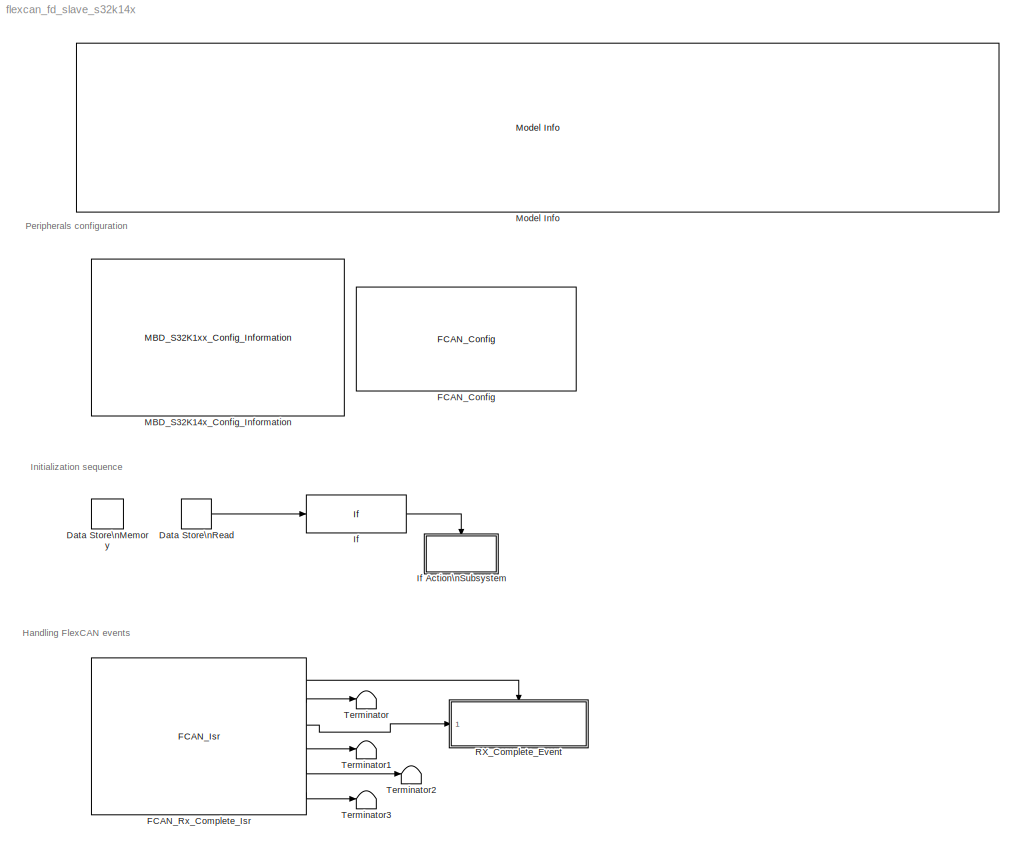
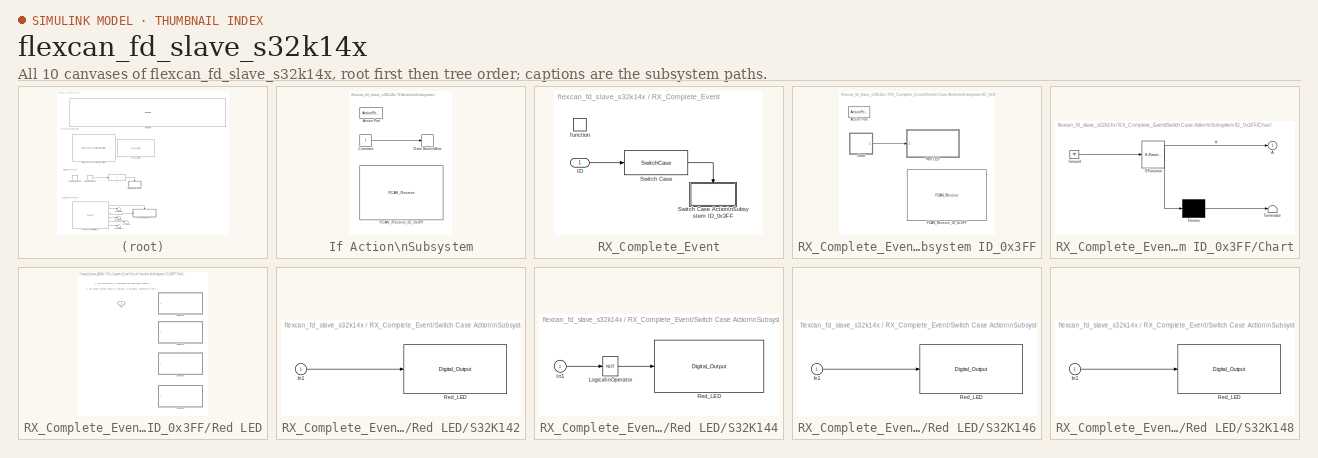
[diagram: thumbnail index - all 10 canvases of the model, root first then tree order]
MODEL flexcan_fd_slave_s32k14x
KIND model
CONFIG InitFcn = mbd_s32k_consistency_checks(bdroot(gcs));
CONFIG PreLoadFcn = mbd_s32k_examples_preload_cbk;
BLOCK [DataStoreMemory] Data Store\nMemory
  DataStoreName = Once
  OutDataTypeStr = uint32
  ReadBeforeWriteMsg = warning
  SID = 138
  ShowAdditionalParam = off
  WriteAfterReadMsg = warning
  WriteAfterWriteMsg = warning
BLOCK [DataStoreRead] Data Store\nRead
  DataStoreName = Once
  Ports = [0, 1]
  SID = 139
BLOCK [Reference] FCAN_Config  REF=mbd_s32k1xx_ec_toolbox/Communication Blocks/CAN Blocks/FCAN_Config
  Ports = []
  Priority = 1
  SID = 2
  SourceBlock = mbd_s32k1xx_ec_toolbox/Communication Blocks/CAN Blocks/FCAN_Config
  SourceType = fcan_s32k_config
  bitrate = 500
  bitrate_adv_opts = off
  can_cbt_presdiv = 3
  can_cbt_propseg = 27
  can_cbt_pseg1 = 5
  can_cbt_pseg2 = 5
  can_cbt_rjw = 3
  can_clk_src = Peripheral clock
  can_fd_enable = on
  can_fifo_id_filter = {'0x0', '0x0', '0x0', '0x0', '0x0', '0x0', '0x0', '0x0'}
  can_fifo_id_filter_extended = off
  can_fifo_id_filter_remote = off
  can_fifo_id_format = A
  can_idfilter_extendedid = off
  can_idfilter_id1 = 0
  can_idfilter_id2 = 0
  can_idfilter_remoteframe = off
  can_idfilter_type = Match exact
  can_instance = 0
  can_match_timeout = 1
  can_max_num_mb = 16
  can_mode = Normal mode
  can_multiple_matches_en = off
  can_num_id_filters = 8
  can_num_matches = 1
  can_payload = 8
  can_payloadfilter_dlchigh = 0
  can_payloadfilter_dlclow = 0
  can_payloadfilter_enable = off
  can_payloadfilter_payload1_b0 = 0
  can_payloadfilter_payload1_b1 = 0
  can_payloadfilter_payload1_b2 = 0
  can_payloadfilter_payload1_b3 = 0
  can_payloadfilter_payload1_b4 = 0
  can_payloadfilter_payload1_b5 = 0
  can_payloadfilter_payload1_b6 = 0
  can_payloadfilter_payload1_b7 = 0
  can_payloadfilter_payload2_b0 = 0
  can_payloadfilter_payload2_b1 = 0
  can_payloadfilter_payload2_b2 = 0
  can_payloadfilter_payload2_b3 = 0
  can_payloadfilter_payload2_b4 = 0
  can_payloadfilter_payload2_b5 = 0
  can_payloadfilter_payload2_b6 = 0
  can_payloadfilter_payload2_b7 = 0
  can_payloadfilter_type = Match exact
  can_pn_enable = off
  can_presdiv = 7
  can_propseg = 7
  can_pseg1 = 6
  can_pseg2 = 3
  can_rjw = 3
  can_rx = PTE4: [CAN0_RX | CAN Rx channel]
  can_rxfifo_enable = off
  can_timeout_en = off
  can_tx = PTE5: [CAN0_TX | CAN Tx Channel]
  can_wakeup_match = off
  can_wakeup_timeout = off
  show_adv_opts = on
BLOCK [Reference] FCAN_Rx_Complete_Isr  REF=mbd_s32k1xx_ec_toolbox/Communication Blocks/CAN Blocks/FCAN_Isr
  Ports = [0, 6]
  SID = 86
  SourceBlock = mbd_s32k1xx_ec_toolbox/Communication Blocks/CAN Blocks/FCAN_Isr
  SourceType = fcan_s32k_isr
  can_event = Rx Complete
  can_instance = 0
BLOCK [If] If
  IfExpression = u1 == 0
  Ports = [1, 1]
  SID = 144
  ShowElse = off
BLOCK [SubSystem] If Action\nSubsystem
  Ports = [0, 0, 0, 0, 0, 0, 0, 1]
  RequestExecContextInheritance = off
  SID = 145
  TreatAsAtomicUnit = on
  Variant = off
BLOCK [ActionPort] If Action\nSubsystem/Action Port
  SID = 147
BLOCK [Constant] If Action\nSubsystem/Constant
  OutDataTypeStr = uint32
  SID = 142
BLOCK [DataStoreWrite] If Action\nSubsystem/Data Store\nWrite
  DataStoreName = Once
  Ports = [1]
  SID = 141
BLOCK [Reference] If Action\nSubsystem/FCAN_Receive_ID_0x3FF  REF=mbd_s32k1xx_ec_toolbox/Communication Blocks/CAN Blocks/FCAN_Receive
  Ports = []
  SID = 194
  SourceBlock = mbd_s32k1xx_ec_toolbox/Communication Blocks/CAN Blocks/FCAN_Receive
  SourceType = fcan_s32k_receive
  can_extended_id = off
  can_fd_enable = on
  can_id = 3FF
  can_instance = 0
  can_is_remote = off
  can_mb_idx = 14
  can_mode = Non-blocking
  can_msg_mask = FFFFFFFF
  can_timeout_ms = 0
  can_use_rxfifo = off
  show_adv_opts = on
BLOCK [Reference] MBD_S32K14x_Config_Information  REF=mbd_s32k1xx_ec_toolbox/MBD_S32K1xx_Config_Information
  ADC_PcrCheckEnDis = on
  AMMCLIB_PcrCheckEnDis = on
  CMP_PcrCheckEnDis = on
  CSEc_PcrCheckEnDis = on
  ConfigParams_PcrCheckEnDis = on
  FM_PcrCheckEnDis = on
  FTM_Dual_Edge_Inputs_PcrCheckEnDis = on
  FTM_Hall_Sensor_Inputs_PcrCheckEnDis = on
  FTM_Input_Edge_Inputs_PcrCheckEnDis = on
  FTM_PWM_PcrCheckEnDis = on
  FTM_Quadrature_Inputs_PcrCheckEnDis = on
  FlexCAN_PcrCheckEnDis = on
  FlexIO_PcrCheckEnDis = on
  GPIO_InputPcrCheckEnDis = on
  GPIO_OutputPcrCheckEnDis = on
  LIN_PcrCheckEnDis = on
  LPI2C_PcrCheckEnDis = on
  LPSPI_PcrCheckEnDis = on
  LPTMR_PcrCheckEnDis = on
  LPUART_PcrCheckEnDis = on
  ModelRef_PcrCheckEnDis = on
  PDB0_PcrCheckEnDis = on
  PIT_PcrCheckEnDis = on
  Ports = []
  Profile_PcrCheckEnDis = on
  RTC_PcrCheckEnDis = on
  SBC_PcrCheckEnDis = on
  SID = 227
  SourceBlock = mbd_s32k1xx_ec_toolbox/MBD_S32K1xx_Config_Information
  SourceType = MBDTBX_EC_S32K
  WDOG_PcrCheckEnDis = on
  config_params = []
  disp_str = Target : S32K144-64KB_SRAM\nPackage : 100-pin\nSystem clock : 80 MHz\nXTAL clock : External 8 MHz\nCompiler : IAR\nTarget Type : FLASH\nDownload Code after build : off\nStep Tick Interrupt Priority : 15
  ds_import_enable = on
  eDMA_PcrCheckEnDis = on
  gcc_target_assemble_opts = -mcpu=cortex-m4 -mthumb -mfloat-abi=hard -mfpu=fpv4-sp-d16 -g
  gcc_target_compile_opts = -mcpu=cortex-m4 -mthumb -mfloat-abi=hard -mfpu=fpv4-sp-d16 -O1 -g -gstrict-dwarf
  gcc_target_default_lcf = on
  gcc_target_link_opts = -mcpu=cortex-m4 -mthumb -mfloat-abi=hard -mfpu=fpv4-sp-d16
  gcc_target_user_lcf = S32K144_64_flash.ld
  ghs_target_assemble_opts = -cpu=cortexm4f -fpu=vfpv4_d16
  ghs_target_compile_opts = -cpu=cortexm4f -thumb -DARM_MATH_CM4 -fpu=vfpv4_d16 -fsingle -Ogeneral -Wundef -Wimplicit-int -Wshadow -Wtrigraphs --no_commons --gnu_asm -gnu99 -gdwarf-2 -G
  ghs_target_default_lcf = on
  ghs_target_link_opts = -cpu=cortexm4f -thumb -fpu=vfpv4_d16
  ghs_target_user_lcf = S32K144_64_flash.ld
  iar_target_assemble_opts = --cpu Cortex-M4F --thumb --fpu VFPv4_sp
  iar_target_compile_opts = --cpu=Cortex-M4F --thumb --fpu=VFPv4_sp -Ol -e --debug --dlib_config normal
  iar_target_default_lcf = on
  iar_target_link_opts = --no_exceptions --vfe --inline
  iar_target_user_lcf = S32K144_64_flash.icf
  mbdt_ver = 0
  mcu_steptick_prio = 15
  mcu_steptick_timer = LPIT Channel 0
  mcu_system_clock_freq = 80
  mcu_target_name = S32K144
  mcu_target_package = 100-LQFP
  mcu_target_sram_size = 64KB
  mcu_xtal_freq = External 8
  pil_download_enable = off
  pil_download_rate = 57600
  pil_opensda_drive = Custom
  pil_opensda_drive_custom = D
  pil_uart_instance = 0
  pil_uart_rx = PTA2: [LPUART0_RX | Receive]
  pil_uart_tx = PTA3: [LPUART0_TX | Transmit]
  rbl_com_port = Custom
  rbl_com_port_custom = COM1
  rbl_download_enable = off
  rbl_download_interface = OpenSDA
  rbl_restart_request = off
  rbl_start_delay = 5000000
  target_compiler = GCC
  target_memory = FLASH
BLOCK [Reference] Model Info  REF=simulink/Model-Wide\nUtilities/Model Info
  DisplayStringWithTags = Model Name: %<ModelName>\n\nDescription: %<Description>
  Frame = off
  HorizontalTextAlignment = Left
  LeftAlignmentValue = 0.02
  MaskDisplayString = Model Name: flexcan_fd_slave_s32k14x\\n\\nDescription: This model tests CAN FD for the FlexCan communication.\\nIt waits for CAN FD messages with ID 0x3FF. On each received message Red LED is toggled.\\n \\nHW prerequisite:\\n- S32K142EVB-Q100 / S32K144EVB-Q100 / S32K146EVB-Q144 / S32K148EVB-Q144\\n- Make sure that J107 has pin 1 and 2 connected and external power supply is provieded through J16.\...<+157ch>
  Ports = []
  SID = 74
  SourceBlock = simulink/Model-Wide\nUtilities/Model Info
  SourceProductBaseCode = SL
  SourceProductName = Simulink
  SourceType = CMBlock
BLOCK [SubSystem] RX_Complete_Event
  Ports = [1, 0, 0, 1]
  RTWSystemCode = Nonreusable function
  RequestExecContextInheritance = off
  SID = 160
  TreatAsAtomicUnit = on
  Variant = off
BLOCK [Inport] RX_Complete_Event/ID
  IconDisplay = Port number
  SID = 175
BLOCK [SwitchCase] RX_Complete_Event/Switch Case
  CaseConditions = {hex2dec('3FF')}
  Ports = [1, 1]
  SID = 90
  ShowDefaultCase = off
BLOCK [SubSystem] RX_Complete_Event/Switch Case Action\nSubsystem ID_0x3FF
  Ports = [0, 0, 0, 0, 0, 0, 0, 1]
  RequestExecContextInheritance = off
  SID = 198
  TreatAsAtomicUnit = on
  Variant = off
BLOCK [ActionPort] RX_Complete_Event/Switch Case Action\nSubsystem ID_0x3FF/Action Port
  SID = 199
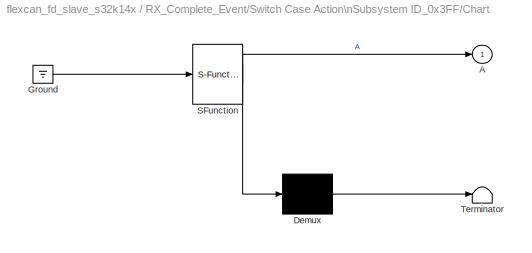
BLOCK [SubSystem] RX_Complete_Event/Switch Case Action\nSubsystem ID_0x3FF/Chart
  ErrorFcn = Stateflow.Translate.translate
  PermitHierarchicalResolution = ExplicitOnly
  Ports = [0, 1]
  RequestExecContextInheritance = off
  SFBlockType = Chart
  SID = 200
  TreatAsAtomicUnit = on
  Variant = off
BLOCK [Outport] RX_Complete_Event/Switch Case Action\nSubsystem ID_0x3FF/Chart/ A
  IconDisplay = Port number
  SID = 200::6
BLOCK [Demux] RX_Complete_Event/Switch Case Action\nSubsystem ID_0x3FF/Chart/ Demux 
  Outputs = 1
  Ports = [1, 1]
  SID = 200::40
BLOCK [Ground] RX_Complete_Event/Switch Case Action\nSubsystem ID_0x3FF/Chart/ Ground 
  SID = 200::42
BLOCK [S-Function] RX_Complete_Event/Switch Case Action\nSubsystem ID_0x3FF/Chart/ SFunction 
  EnableBusSupport = off
  FunctionName = sf_sfun
  PortCounts = [1 2]
  Ports = [1, 2]
  SFcnIsStateOwnerBlock = off
  SFunctionDeploymentMode = off
  SID = 200::39
  Tag = Stateflow S-Function flexcan_fd_slave_s32k14x 2
BLOCK [Terminator] RX_Complete_Event/Switch Case Action\nSubsystem ID_0x3FF/Chart/ Terminator 
  SID = 200::41
BLOCK [Reference] RX_Complete_Event/Switch Case Action\nSubsystem ID_0x3FF/FCAN_Receive_ID_0x3FF  REF=mbd_s32k1xx_ec_toolbox/Communication Blocks/CAN Blocks/FCAN_Receive
  Ports = []
  SID = 202
  SourceBlock = mbd_s32k1xx_ec_toolbox/Communication Blocks/CAN Blocks/FCAN_Receive
  SourceType = fcan_s32k_receive
  can_extended_id = off
  can_fd_enable = on
  can_id = 3FF
  can_instance = 0
  can_is_remote = off
  can_mb_idx = 14
  can_mode = Non-blocking
  can_msg_mask = FFFFFFFF
  can_timeout_ms = 0
  can_use_rxfifo = off
  show_adv_opts = on
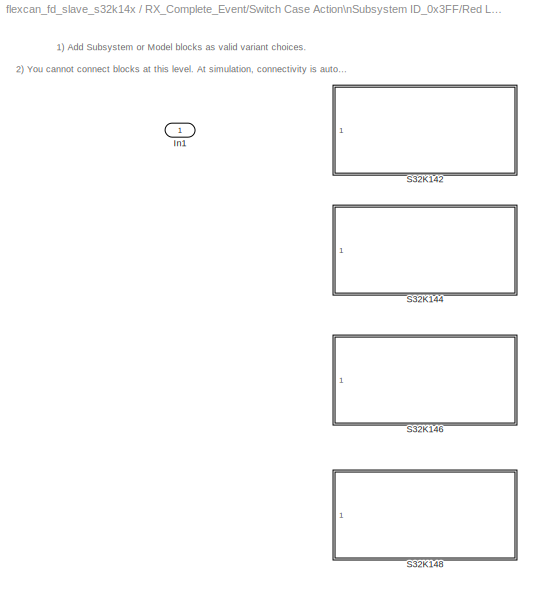
BLOCK [SubSystem] RX_Complete_Event/Switch Case Action\nSubsystem ID_0x3FF/Red LED
  Ports = [1]
  RequestExecContextInheritance = off
  SID = 228
  Variant = on
BLOCK [Inport] RX_Complete_Event/Switch Case Action\nSubsystem ID_0x3FF/Red LED/In1
  IconDisplay = Port number
  SID = 229
BLOCK [SubSystem] RX_Complete_Event/Switch Case Action\nSubsystem ID_0x3FF/Red LED/S32K142
  Ports = [1]
  RequestExecContextInheritance = off
  SID = 230
  Variant = off
  VariantControl = VSS_S32k142
BLOCK [Inport] RX_Complete_Event/Switch Case Action\nSubsystem ID_0x3FF/Red LED/S32K142/In1
  IconDisplay = Port number
  SID = 231
BLOCK [Reference] RX_Complete_Event/Switch Case Action\nSubsystem ID_0x3FF/Red LED/S32K142/Red_LED  REF=mbd_s32k1xx_ec_toolbox/GPIO Blocks/Digital_Output
  Ports = [1]
  SID = 232
  SourceBlock = mbd_s32k1xx_ec_toolbox/GPIO Blocks/Digital_Output
  SourceType = gpio_s32k_output
  drive_strength = Low
  gpio_pin = PTD15: [PTD15 | Port D I/O]
  init_val = Low
BLOCK [SubSystem] RX_Complete_Event/Switch Case Action\nSubsystem ID_0x3FF/Red LED/S32K144
  Ports = [1]
  RequestExecContextInheritance = off
  SID = 233
  Variant = off
  VariantControl = VSS_S32k144
BLOCK [Inport] RX_Complete_Event/Switch Case Action\nSubsystem ID_0x3FF/Red LED/S32K144/In1
  IconDisplay = Port number
  SID = 234
BLOCK [Logic] RX_Complete_Event/Switch Case Action\nSubsystem ID_0x3FF/Red LED/S32K144/Logical\nOperator
  AllPortsSameDT = off
  Operator = NOT
  OutDataTypeStr = boolean
  Ports = [1, 1]
  SID = 235
BLOCK [Reference] RX_Complete_Event/Switch Case Action\nSubsystem ID_0x3FF/Red LED/S32K144/Red_LED  REF=mbd_s32k1xx_ec_toolbox/GPIO Blocks/Digital_Output
  Ports = [1]
  SID = 236
  SourceBlock = mbd_s32k1xx_ec_toolbox/GPIO Blocks/Digital_Output
  SourceType = gpio_s32k_output
  drive_strength = Low
  gpio_pin = PTD15: [PTD15 | Port D I/O]
  init_val = Low
BLOCK [SubSystem] RX_Complete_Event/Switch Case Action\nSubsystem ID_0x3FF/Red LED/S32K146
  Ports = [1]
  RequestExecContextInheritance = off
  SID = 237
  Variant = off
  VariantControl = VSS_S32k146
BLOCK [Inport] RX_Complete_Event/Switch Case Action\nSubsystem ID_0x3FF/Red LED/S32K146/In1
  IconDisplay = Port number
  SID = 238
BLOCK [Reference] RX_Complete_Event/Switch Case Action\nSubsystem ID_0x3FF/Red LED/S32K146/Red_LED  REF=mbd_s32k1xx_ec_toolbox/GPIO Blocks/Digital_Output
  Ports = [1]
  SID = 239
  SourceBlock = mbd_s32k1xx_ec_toolbox/GPIO Blocks/Digital_Output
  SourceType = gpio_s32k_output
  drive_strength = Low
  gpio_pin = PTD15: [PTD15 | Port D I/O]
  init_val = Low
BLOCK [SubSystem] RX_Complete_Event/Switch Case Action\nSubsystem ID_0x3FF/Red LED/S32K148
  Ports = [1]
  RequestExecContextInheritance = off
  SID = 240
  Variant = off
  VariantControl = VSS_S32k148
BLOCK [Inport] RX_Complete_Event/Switch Case Action\nSubsystem ID_0x3FF/Red LED/S32K148/In1
  IconDisplay = Port number
  SID = 241
BLOCK [Reference] RX_Complete_Event/Switch Case Action\nSubsystem ID_0x3FF/Red LED/S32K148/Red_LED  REF=mbd_s32k1xx_ec_toolbox/GPIO Blocks/Digital_Output
  Ports = [1]
  SID = 242
  SourceBlock = mbd_s32k1xx_ec_toolbox/GPIO Blocks/Digital_Output
  SourceType = gpio_s32k_output
  drive_strength = Low
  gpio_pin = PTE21: [PTE21 | Port E I/O]
  init_val = Low
BLOCK [TriggerPort] RX_Complete_Event/function
  Ports = []
  SID = 161
  StatesWhenEnabling = held
  TriggerType = function-call
  VariantControl = Variant
BLOCK [Terminator] Terminator
  SID = 221
BLOCK [Terminator] Terminator1
  SID = 220
BLOCK [Terminator] Terminator2
  SID = 219
BLOCK [Terminator] Terminator3
  SID = 226
ANNOTATION (root): Handling FlexCAN events
ANNOTATION (root): Initialization sequence
ANNOTATION (root): Peripherals configuration
ANNOTATION RX_Complete_Event/Switch Case Action\nSubsystem ID_0x3FF/Red LED: \n \n 1) Add Subsystem or Model blocks as valid variant choices. \n 2) You cannot connect blocks at this level. At simulation, connectivity is automatically \n determined, based on the active variant and port name matching.
LINE Data Store\nRead:1 -> If:1
LINE FCAN_Rx_Complete_Isr:1 -> RX_Complete_Event:trigger
LINE FCAN_Rx_Complete_Isr:2 -> Terminator:1
LINE FCAN_Rx_Complete_Isr:3 -> RX_Complete_Event:1
LINE FCAN_Rx_Complete_Isr:4 -> Terminator1:1
LINE FCAN_Rx_Complete_Isr:5 -> Terminator2:1
LINE FCAN_Rx_Complete_Isr:6 -> Terminator3:1
LINE If Action\nSubsystem/Constant:1 -> If Action\nSubsystem/Data Store\nWrite:1
LINE If:1 -> If Action\nSubsystem:ifaction
LINE RX_Complete_Event/ID:1 -> RX_Complete_Event/Switch Case:1
LINE RX_Complete_Event/Switch Case Action\nSubsystem ID_0x3FF/Chart/ Demux :1 -> RX_Complete_Event/Switch Case Action\nSubsystem ID_0x3FF/Chart/ Terminator :1
LINE RX_Complete_Event/Switch Case Action\nSubsystem ID_0x3FF/Chart/ Ground :1 -> RX_Complete_Event/Switch Case Action\nSubsystem ID_0x3FF/Chart/ SFunction :1
LINE RX_Complete_Event/Switch Case Action\nSubsystem ID_0x3FF/Chart/ SFunction :1 -> RX_Complete_Event/Switch Case Action\nSubsystem ID_0x3FF/Chart/ Demux :1
LINE RX_Complete_Event/Switch Case Action\nSubsystem ID_0x3FF/Chart/ SFunction :2 -> RX_Complete_Event/Switch Case Action\nSubsystem ID_0x3FF/Chart/ A:1
LINE RX_Complete_Event/Switch Case Action\nSubsystem ID_0x3FF/Chart:1 -> RX_Complete_Event/Switch Case Action\nSubsystem ID_0x3FF/Red LED:1
LINE RX_Complete_Event/Switch Case Action\nSubsystem ID_0x3FF/Red LED/S32K142/In1:1 -> RX_Complete_Event/Switch Case Action\nSubsystem ID_0x3FF/Red LED/S32K142/Red_LED:1
LINE RX_Complete_Event/Switch Case Action\nSubsystem ID_0x3FF/Red LED/S32K144/In1:1 -> RX_Complete_Event/Switch Case Action\nSubsystem ID_0x3FF/Red LED/S32K144/Logical\nOperator:1
LINE RX_Complete_Event/Switch Case Action\nSubsystem ID_0x3FF/Red LED/S32K144/Logical\nOperator:1 -> RX_Complete_Event/Switch Case Action\nSubsystem ID_0x3FF/Red LED/S32K144/Red_LED:1
LINE RX_Complete_Event/Switch Case Action\nSubsystem ID_0x3FF/Red LED/S32K146/In1:1 -> RX_Complete_Event/Switch Case Action\nSubsystem ID_0x3FF/Red LED/S32K146/Red_LED:1
LINE RX_Complete_Event/Switch Case Action\nSubsystem ID_0x3FF/Red LED/S32K148/In1:1 -> RX_Complete_Event/Switch Case Action\nSubsystem ID_0x3FF/Red LED/S32K148/Red_LED:1
LINE RX_Complete_Event/Switch Case:1 -> RX_Complete_Event/Switch Case Action\nSubsystem ID_0x3FF:ifaction
CHART RX_Complete_Event/Switch Case Action\nSubsystem ID_0x3FF/Chart states=2 transitions=3
  STATE_LABEL 'A'
  STATE_LABEL 'A1'
